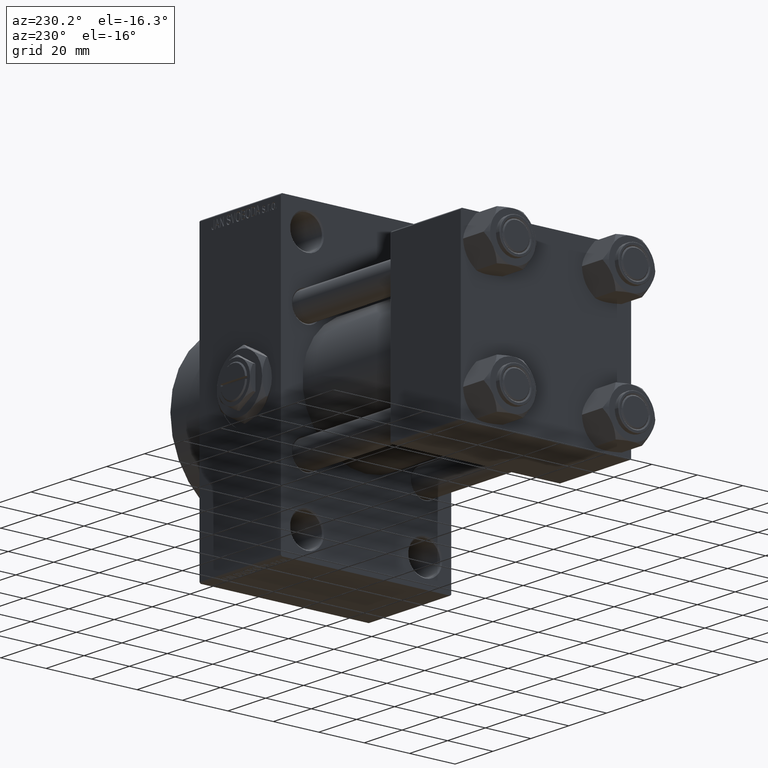
[diagram: clean part render]
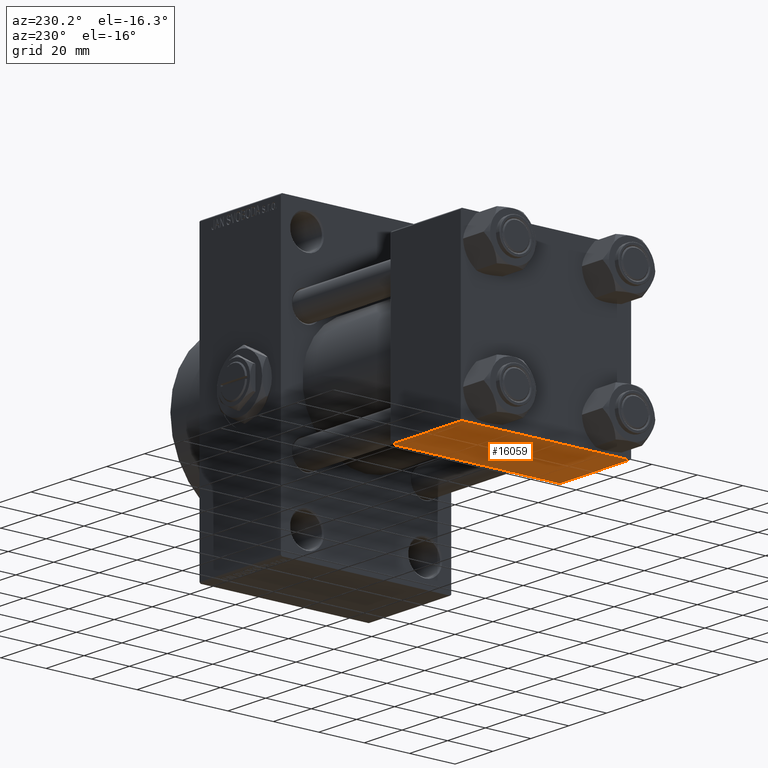
[diagram: same view with one face highlighted and labeled with its STEP entity id]
A machine part, auxiliary view. The second image highlights one B-rep face of the part: STEP entity #16059.
In plain terms, the highlighted planar face has unit normal (0, 0, -1).
Its self-contained STEP definition (entity closure, byte-faithful):
#1351 = DIRECTION ( 'NONE',  ( 1.000000000000000000, 0.000000000000000000, 0.000000000000000000 ) ) ;
#1986 = CARTESIAN_POINT ( 'NONE',  ( 0.000000000000000000, -37.00000000000002132, -37.50000000000000711 ) ) ;
#3404 = VECTOR ( 'NONE', #1351, 1000.000000000000000 ) ;
#4274 = VERTEX_POINT ( 'NONE', #10519 ) ;
#5679 = ORIENTED_EDGE ( 'NONE', *, *, #11220, .T. ) ;
#6731 = VERTEX_POINT ( 'NONE', #37793 ) ;
#10519 = CARTESIAN_POINT ( 'NONE',  ( 0.000000000000000000, 36.99999999999997868, -37.50000000000000000 ) ) ;
#11220 = EDGE_CURVE ( 'NONE', #4274, #26192, #24689, .T. ) ;
#13215 = DIRECTION ( 'NONE',  ( 0.000000000000000000, -1.000000000000000000, -9.251858538542972814E-17 ) ) ;
#16059 = ADVANCED_FACE ( 'NONE', ( #19953 ), #27654, .T. ) ;
#16251 = LINE ( 'NONE', #20215, #18300 ) ;
#18300 = VECTOR ( 'NONE', #35628, 1000.000000000000000 ) ;
#19953 = FACE_OUTER_BOUND ( 'NONE', #36625, .T. ) ;
#20215 = CARTESIAN_POINT ( 'NONE',  ( 37.00000000000000000, 37.49999999999999289, -37.50000000000000000 ) ) ;
#20237 = CARTESIAN_POINT ( 'NONE',  ( 37.00000000000000000, 36.99999999999997868, -37.50000000000000000 ) ) ;
#21178 = CARTESIAN_POINT ( 'NONE',  ( 37.00000000000000000, 36.99999999999997868, -37.50000000000000000 ) ) ;
#21340 = VECTOR ( 'NONE', #32311, 1000.000000000000000 ) ;
#22289 = VECTOR ( 'NONE', #13215, 1000.000000000000000 ) ;
#23555 = CARTESIAN_POINT ( 'NONE',  ( 0.000000000000000000, -37.00000000000002132, -37.50000000000000711 ) ) ;
#24689 = LINE ( 'NONE', #20237, #3404 ) ;
#26192 = VERTEX_POINT ( 'NONE', #21178 ) ;
#27331 = EDGE_CURVE ( 'NONE', #6731, #29745, #47470, .T. ) ;
#27654 = PLANE ( 'NONE',  #47252 ) ;
#29745 = VERTEX_POINT ( 'NONE', #23555 ) ;
#30075 = ORIENTED_EDGE ( 'NONE', *, *, #34291, .T. ) ;
#30398 = DIRECTION ( 'NONE',  ( 0.000000000000000000, 1.000000000000000000, 9.251858538542972814E-17 ) ) ;
#32311 = DIRECTION ( 'NONE',  ( -1.000000000000000000, 0.000000000000000000, 0.000000000000000000 ) ) ;
#34291 = EDGE_CURVE ( 'NONE', #26192, #6731, #16251, .T. ) ;
#34538 = ORIENTED_EDGE ( 'NONE', *, *, #36600, .F. ) ;
#34636 = CARTESIAN_POINT ( 'NONE',  ( 37.00000000000000000, 37.49999999999999289, -37.50000000000000000 ) ) ;
#35628 = DIRECTION ( 'NONE',  ( 0.000000000000000000, -1.000000000000000000, -9.251858538542972814E-17 ) ) ;
#36578 = LINE ( 'NONE', #40534, #22289 ) ;
#36600 = EDGE_CURVE ( 'NONE', #4274, #29745, #36578, .T. ) ;
#36625 = EDGE_LOOP ( 'NONE', ( #34538, #5679, #30075, #41691 ) ) ;
#37793 = CARTESIAN_POINT ( 'NONE',  ( 37.00000000000000000, -37.00000000000002132, -37.50000000000000711 ) ) ;
#38359 = DIRECTION ( 'NONE',  ( 0.000000000000000000, 9.251858538542972814E-17, -1.000000000000000000 ) ) ;
#40534 = CARTESIAN_POINT ( 'NONE',  ( 0.000000000000000000, 37.49999999999999289, -37.50000000000000000 ) ) ;
#41691 = ORIENTED_EDGE ( 'NONE', *, *, #27331, .T. ) ;
#47252 = AXIS2_PLACEMENT_3D ( 'NONE', #34636, #38359, #30398 ) ;
#47470 = LINE ( 'NONE', #1986, #21340 ) ;